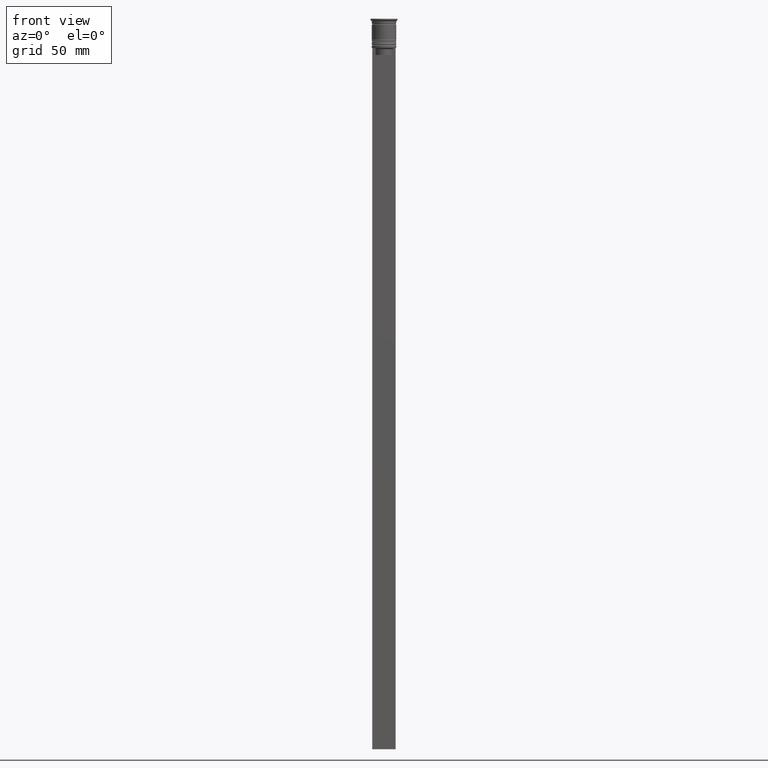
[diagram: clean part render]
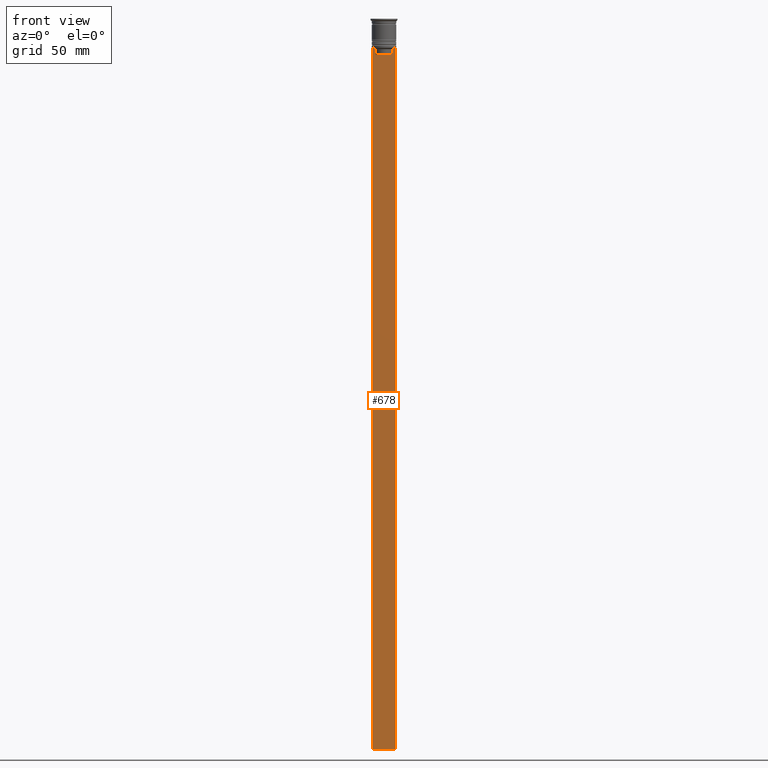
[diagram: same view with one face highlighted and labeled with its STEP entity id]
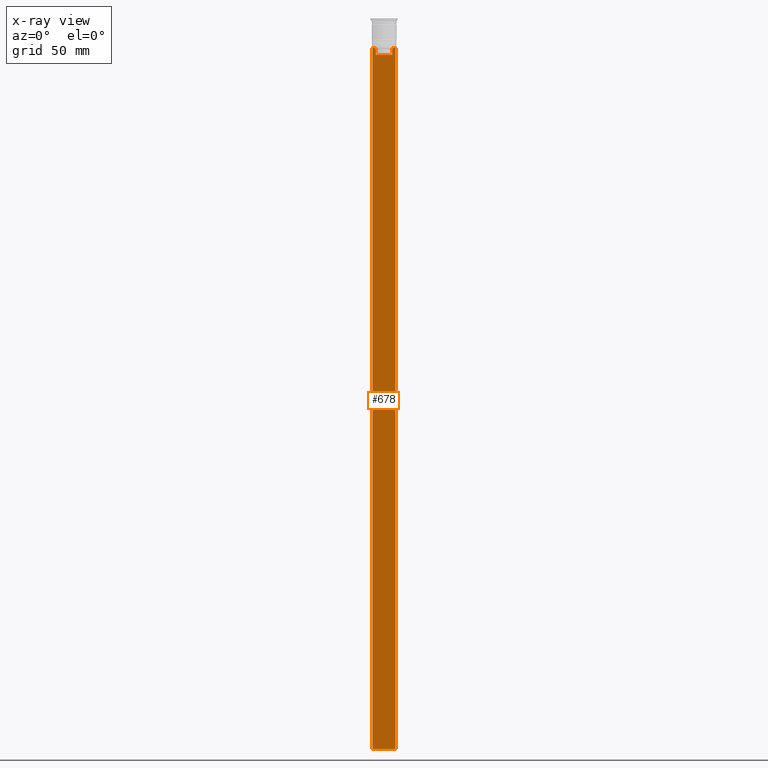
[diagram: x-ray of the same camera — body ghosted, the highlighted face saturated]
A machine part, front view. The second image highlights one B-rep face of the part: STEP entity #678.
The next image is the same camera in x-ray: the body ghosted, the highlighted face saturated — about 0% of this face is hidden behind the body in this view.
In plain terms, the highlighted planar face has unit normal (0, -1, -0).
Its self-contained STEP definition (entity closure, byte-faithful):
#84 = LINE ( 'NONE', #1179, #2301 ) ;
#193 = EDGE_CURVE ( 'NONE', #2270, #2308, #2250, .T. ) ;
#205 = VECTOR ( 'NONE', #2047, 1000.000000000000000 ) ;
#235 = CARTESIAN_POINT ( 'NONE',  ( 4.119769411022908834, -0.5000000000000008882, -12.50000000000000000 ) ) ;
#294 = ORIENTED_EDGE ( 'NONE', *, *, #2281, .F. ) ;
#308 = DIRECTION ( 'NONE',  ( 0.000000000000000000, 0.000000000000000000, -1.000000000000000000 ) ) ;
#336 = DIRECTION ( 'NONE',  ( -0.000000000000000000, -0.000000000000000000, 1.000000000000000000 ) ) ;
#344 = VERTEX_POINT ( 'NONE', #515 ) ;
#356 = VECTOR ( 'NONE', #336, 1000.000000000000000 ) ;
#402 = CARTESIAN_POINT ( 'NONE',  ( 0.000000000000000000, -0.5000000000000008882, -15.50000000000000000 ) ) ;
#492 = EDGE_CURVE ( 'NONE', #1985, #1673, #523, .T. ) ;
#502 = VERTEX_POINT ( 'NONE', #716 ) ;
#515 = CARTESIAN_POINT ( 'NONE',  ( -4.999999999999999112, -0.5000000000000008882, -312.5000000000000000 ) ) ;
#523 = LINE ( 'NONE', #905, #1541 ) ;
#567 = LINE ( 'NONE', #402, #765 ) ;
#595 = CARTESIAN_POINT ( 'NONE',  ( 4.119769411022908834, -0.5000000000000008882, -12.50000000000000000 ) ) ;
#602 = DIRECTION ( 'NONE',  ( 1.000000000000000000, 0.000000000000000000, 0.000000000000000000 ) ) ;
#621 = CARTESIAN_POINT ( 'NONE',  ( 3.783746406711540278, -0.5000000000000008882, -12.83343003979123509 ) ) ;
#678 = ADVANCED_FACE ( 'NONE', ( #1771 ), #851, .T. ) ;
#716 = CARTESIAN_POINT ( 'NONE',  ( -3.615591237958188042, -0.5000000000000008882, -13.00000000000000178 ) ) ;
#765 = VECTOR ( 'NONE', #1135, 1000.000000000000000 ) ;
#768 = LINE ( 'NONE', #785, #2104 ) ;
#784 = CARTESIAN_POINT ( 'NONE',  ( 5.000000000000000000, -0.5000000000000008882, -12.50000000000000000 ) ) ;
#785 = CARTESIAN_POINT ( 'NONE',  ( -4.999999999999999112, -0.5000000000000008882, -2.450124378879110054 ) ) ;
#787 = LINE ( 'NONE', #1368, #205 ) ;
#798 = DIRECTION ( 'NONE',  ( 0.000000000000000000, 0.000000000000000000, -1.000000000000000000 ) ) ;
#842 = B_SPLINE_CURVE_WITH_KNOTS ( 'NONE', 3,
 ( #1138, #621, #1345, #235 ),
 .UNSPECIFIED., .F., .F.,
 ( 4, 4 ),
 ( 0.01745179617248909451, 0.01816207215777257411 ),
 .UNSPECIFIED. ) ;
#851 = PLANE ( 'NONE',  #894 ) ;
#894 = AXIS2_PLACEMENT_3D ( 'NONE', #2101, #1971, #308 ) ;
#905 = CARTESIAN_POINT ( 'NONE',  ( 5.000000000000000000, -0.5000000000000008882, -12.50000000000000000 ) ) ;
#933 = CARTESIAN_POINT ( 'NONE',  ( -3.615591237958188486, -0.5000000000000008882, -15.50000000000000000 ) ) ;
#961 = DIRECTION ( 'NONE',  ( 0.000000000000000000, 0.000000000000000000, -1.000000000000000000 ) ) ;
#1055 = EDGE_CURVE ( 'NONE', #1372, #344, #787, .T. ) ;
#1090 = VECTOR ( 'NONE', #798, 1000.000000000000000 ) ;
#1113 = ORIENTED_EDGE ( 'NONE', *, *, #1408, .F. ) ;
#1135 = DIRECTION ( 'NONE',  ( 1.000000000000000000, 0.000000000000000000, 0.000000000000000000 ) ) ;
#1138 = CARTESIAN_POINT ( 'NONE',  ( 3.615591237958188042, -0.5000000000000008882, -13.00000000000000178 ) ) ;
#1143 = CARTESIAN_POINT ( 'NONE',  ( 3.615591237958188486, -0.5000000000000008882, -15.50000000000000000 ) ) ;
#1179 = CARTESIAN_POINT ( 'NONE',  ( 5.000000000000000000, -0.5000000000000008882, -2.450124378879110054 ) ) ;
#1188 = CARTESIAN_POINT ( 'NONE',  ( 3.615591237958188042, -0.5000000000000008882, -13.00000000000000178 ) ) ;
#1252 = ORIENTED_EDGE ( 'NONE', *, *, #492, .F. ) ;
#1345 = CARTESIAN_POINT ( 'NONE',  ( 3.951794168112528816, -0.5000000000000008882, -12.66675163073525745 ) ) ;
#1361 = CARTESIAN_POINT ( 'NONE',  ( -3.615591237958188042, -0.5000000000000008882, 0.000000000000000000 ) ) ;
#1363 = CARTESIAN_POINT ( 'NONE',  ( -4.999999999999999112, -0.5000000000000008882, -12.50000000000000000 ) ) ;
#1368 = CARTESIAN_POINT ( 'NONE',  ( 5.000000000000000000, -0.5000000000000008882, -312.5000000000000000 ) ) ;
#1372 = VERTEX_POINT ( 'NONE', #1503 ) ;
#1381 = EDGE_CURVE ( 'NONE', #1985, #344, #768, .T. ) ;
#1394 = ORIENTED_EDGE ( 'NONE', *, *, #2246, .F. ) ;
#1408 = EDGE_CURVE ( 'NONE', #1673, #502, #1966, .T. ) ;
#1449 = VERTEX_POINT ( 'NONE', #1143 ) ;
#1478 = CARTESIAN_POINT ( 'NONE',  ( -4.119769411022908834, -0.5000000000000008882, -12.50000000000000000 ) ) ;
#1491 = EDGE_CURVE ( 'NONE', #1900, #1449, #567, .T. ) ;
#1503 = CARTESIAN_POINT ( 'NONE',  ( 5.000000000000000000, -0.5000000000000008882, -312.5000000000000000 ) ) ;
#1516 = VERTEX_POINT ( 'NONE', #1188 ) ;
#1541 = VECTOR ( 'NONE', #1626, 1000.000000000000000 ) ;
#1585 = EDGE_LOOP ( 'NONE', ( #1113, #1252, #2203, #2208, #1733, #1752, #1394, #2055, #1636, #294 ) ) ;
#1617 = LINE ( 'NONE', #1982, #356 ) ;
#1626 = DIRECTION ( 'NONE',  ( 1.000000000000000000, 0.000000000000000000, 0.000000000000000000 ) ) ;
#1636 = ORIENTED_EDGE ( 'NONE', *, *, #1491, .F. ) ;
#1673 = VERTEX_POINT ( 'NONE', #2017 ) ;
#1712 = CARTESIAN_POINT ( 'NONE',  ( 5.000000000000000000, -0.5000000000000008882, -12.50000000000000000 ) ) ;
#1733 = ORIENTED_EDGE ( 'NONE', *, *, #2294, .F. ) ;
#1752 = ORIENTED_EDGE ( 'NONE', *, *, #193, .F. ) ;
#1771 = FACE_OUTER_BOUND ( 'NONE', #1585, .T. ) ;
#1843 = VECTOR ( 'NONE', #602, 1000.000000000000000 ) ;
#1871 = LINE ( 'NONE', #1361, #1090 ) ;
#1900 = VERTEX_POINT ( 'NONE', #933 ) ;
#1966 = B_SPLINE_CURVE_WITH_KNOTS ( 'NONE', 3,
 ( #1478, #2215, #2063, #2232 ),
 .UNSPECIFIED., .F., .F.,
 ( 4, 4 ),
 ( 0.007067514914986629433, 0.007777582239375527978 ),
 .UNSPECIFIED. ) ;
#1971 = DIRECTION ( 'NONE',  ( 0.000000000000000000, -1.000000000000000000, -0.000000000000000000 ) ) ;
#1982 = CARTESIAN_POINT ( 'NONE',  ( 3.615591237958188042, -0.5000000000000008882, 0.000000000000000000 ) ) ;
#1985 = VERTEX_POINT ( 'NONE', #1363 ) ;
#2017 = CARTESIAN_POINT ( 'NONE',  ( -4.119769411022908834, -0.5000000000000008882, -12.50000000000000000 ) ) ;
#2047 = DIRECTION ( 'NONE',  ( -1.000000000000000000, 0.000000000000000000, 0.000000000000000000 ) ) ;
#2055 = ORIENTED_EDGE ( 'NONE', *, *, #2184, .F. ) ;
#2063 = CARTESIAN_POINT ( 'NONE',  ( -3.783746449387932476, -0.5000000000000008882, -12.83342999751715752 ) ) ;
#2101 = CARTESIAN_POINT ( 'NONE',  ( 5.000000000000000000, -0.5000000000000008882, -2.450124378879110054 ) ) ;
#2104 = VECTOR ( 'NONE', #2242, 1000.000000000000000 ) ;
#2184 = EDGE_CURVE ( 'NONE', #1449, #1516, #1617, .T. ) ;
#2203 = ORIENTED_EDGE ( 'NONE', *, *, #1381, .T. ) ;
#2208 = ORIENTED_EDGE ( 'NONE', *, *, #1055, .F. ) ;
#2215 = CARTESIAN_POINT ( 'NONE',  ( -3.951794205566887985, -0.5000000000000008882, -12.66675159355373914 ) ) ;
#2232 = CARTESIAN_POINT ( 'NONE',  ( -3.615591237958188042, -0.5000000000000008882, -13.00000000000000178 ) ) ;
#2242 = DIRECTION ( 'NONE',  ( 0.000000000000000000, 0.000000000000000000, -1.000000000000000000 ) ) ;
#2246 = EDGE_CURVE ( 'NONE', #1516, #2270, #842, .T. ) ;
#2250 = LINE ( 'NONE', #784, #1843 ) ;
#2270 = VERTEX_POINT ( 'NONE', #595 ) ;
#2281 = EDGE_CURVE ( 'NONE', #502, #1900, #1871, .T. ) ;
#2294 = EDGE_CURVE ( 'NONE', #2308, #1372, #84, .T. ) ;
#2301 = VECTOR ( 'NONE', #961, 1000.000000000000000 ) ;
#2308 = VERTEX_POINT ( 'NONE', #1712 ) ;